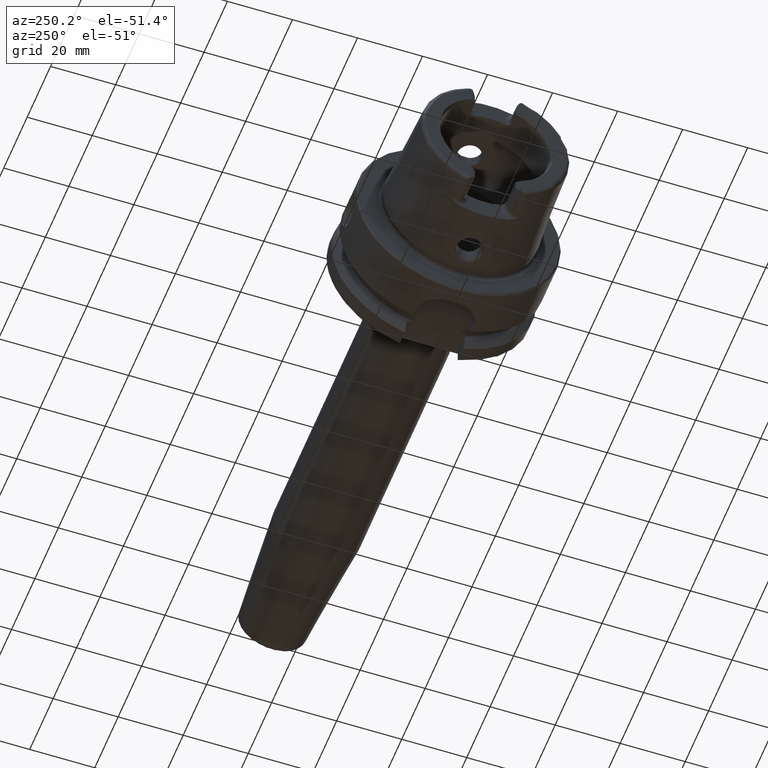
[diagram: clean part render]
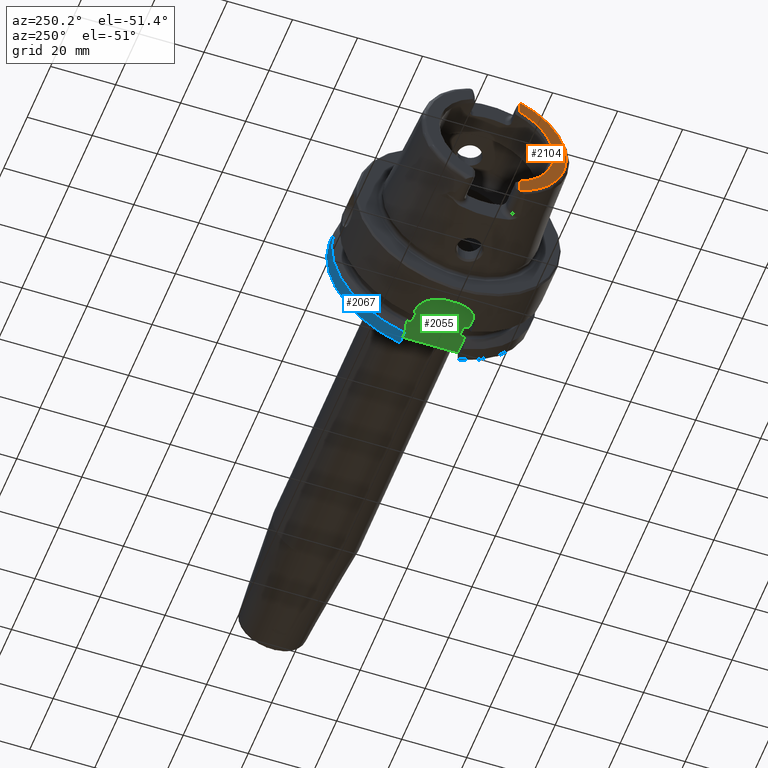
[diagram: same view with three faces highlighted in distinct colors, each labeled with its STEP entity id]
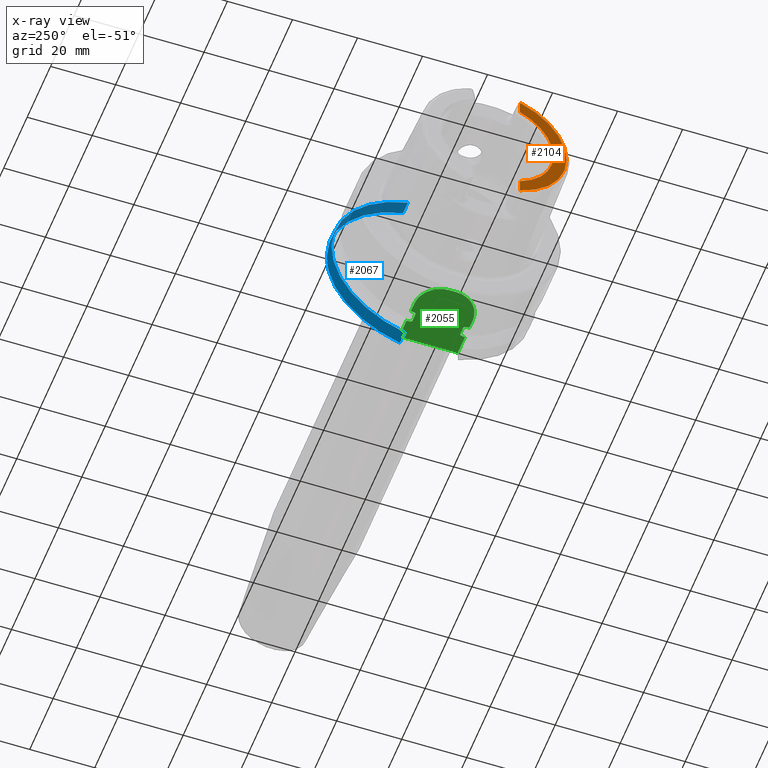
[diagram: x-ray of the same camera — body ghosted, the three highlighted faces saturated]
A machine part, auxiliary view with three faces highlighted in distinct colors.
The next image is the same camera in x-ray (body ghosted, the three faces saturated) — at least one of them is partly hidden behind the body in this view.
Their STEP definitions:

[orange] entity #2104 — the highlighted planar face has unit normal (-1, 0, 0).
#139=PLANE('',#2360);
#316=FACE_OUTER_BOUND('',#446,.T.);
#446=EDGE_LOOP('',(#1900,#1901,#1902,#1903,#1904,#1905));
#488=LINE('',#3133,#598);
#501=LINE('',#3246,#611);
#598=VECTOR('',#2518,10.);
#611=VECTOR('',#2565,10.);
#716=CIRCLE('',#2197,2.88);
#720=CIRCLE('',#2212,2.88);
#793=CIRCLE('',#2361,21.5760400159857);
#794=CIRCLE('',#2362,17.5773502691896);
#852=VERTEX_POINT('',#3130);
#853=VERTEX_POINT('',#3132);
#860=VERTEX_POINT('',#3165);
#873=VERTEX_POINT('',#3239);
#876=VERTEX_POINT('',#3244);
#879=VERTEX_POINT('',#3254);
#1072=EDGE_CURVE('',#852,#853,#488,.T.);
#1081=EDGE_CURVE('',#852,#860,#716,.T.);
#1100=EDGE_CURVE('',#876,#873,#501,.T.);
#1104=EDGE_CURVE('',#879,#873,#720,.T.);
#1313=EDGE_CURVE('',#879,#860,#793,.T.);
#1314=EDGE_CURVE('',#853,#876,#794,.T.);
#1900=ORIENTED_EDGE('',*,*,#1072,.F.);
#1901=ORIENTED_EDGE('',*,*,#1081,.T.);
#1902=ORIENTED_EDGE('',*,*,#1313,.F.);
#1903=ORIENTED_EDGE('',*,*,#1104,.T.);
#1904=ORIENTED_EDGE('',*,*,#1100,.F.);
#1905=ORIENTED_EDGE('',*,*,#1314,.F.);
#2104=ADVANCED_FACE('',(#316),#139,.T.);
#2197=AXIS2_PLACEMENT_3D('',#3178,#2530,#2531);
#2212=AXIS2_PLACEMENT_3D('',#3255,#2573,#2574);
#2360=AXIS2_PLACEMENT_3D('',#4436,#2935,#2936);
#2361=AXIS2_PLACEMENT_3D('',#4437,#2937,#2938);
#2362=AXIS2_PLACEMENT_3D('',#4438,#2939,#2940);
#2518=DIRECTION('',(0.,0.,1.));
#2530=DIRECTION('center_axis',(-1.,0.,0.));
#2531=DIRECTION('ref_axis',(0.,-1.,0.));
#2565=DIRECTION('',(0.,1.58830189502884E-16,1.));
#2573=DIRECTION('center_axis',(-1.,0.,0.));
#2574=DIRECTION('ref_axis',(0.,0.453346760926795,-0.891334232685576));
#2935=DIRECTION('center_axis',(-1.,0.,0.));
#2936=DIRECTION('ref_axis',(0.,0.,1.));
#2937=DIRECTION('center_axis',(1.,0.,0.));
#2938=DIRECTION('ref_axis',(0.,0.,-1.));
#2939=DIRECTION('center_axis',(-1.,0.,0.));
#2940=DIRECTION('ref_axis',(0.,-1.,0.));
#3130=CARTESIAN_POINT('',(-32.,-7.27,-20.1717424229271));
#3132=CARTESIAN_POINT('',(-32.,-7.27,-16.003447831195));
#3133=CARTESIAN_POINT('',(-32.,-7.27,-8.995));
#3165=CARTESIAN_POINT('',(-32.,-7.39118810947246,-20.2705658801576));
#3178=CARTESIAN_POINT('Origin',(-32.,-9.15,-17.99));
#3239=CARTESIAN_POINT('',(-32.,-7.26999999999999,20.1717424229271));
#3244=CARTESIAN_POINT('',(-32.,-7.26999999999999,16.003447831195));
#3246=CARTESIAN_POINT('',(-32.,-7.27,5.5));
#3254=CARTESIAN_POINT('',(-32.,-7.39118810947246,20.2705658801576));
#3255=CARTESIAN_POINT('Origin',(-32.,-9.15,17.99));
#4436=CARTESIAN_POINT('Origin',(-32.,21.5760400159857,0.));
#4437=CARTESIAN_POINT('Origin',(-32.,0.,0.));
#4438=CARTESIAN_POINT('Origin',(-32.,0.,0.));

[blue] entity #2067 — the highlighted cylindrical surface (partial cylindrical patch) has radius 31.5 mm, axis along (1, 0, 0).
#197=CYLINDRICAL_SURFACE('',#2293,31.5);
#279=FACE_OUTER_BOUND('',#408,.T.);
#408=EDGE_LOOP('',(#1699,#1700,#1701,#1702));
#537=LINE('',#4052,#647);
#551=LINE('',#4232,#661);
#647=VECTOR('',#2723,10.);
#661=VECTOR('',#2785,10.);
#761=CIRCLE('',#2290,31.5);
#763=CIRCLE('',#2294,31.5);
#953=VERTEX_POINT('',#4028);
#957=VERTEX_POINT('',#4048);
#982=VERTEX_POINT('',#4215);
#983=VERTEX_POINT('',#4230);
#1213=EDGE_CURVE('',#953,#957,#537,.T.);
#1249=EDGE_CURVE('',#953,#982,#761,.T.);
#1252=EDGE_CURVE('',#957,#983,#763,.T.);
#1253=EDGE_CURVE('',#983,#982,#551,.T.);
#1699=ORIENTED_EDGE('',*,*,#1213,.T.);
#1700=ORIENTED_EDGE('',*,*,#1252,.T.);
#1701=ORIENTED_EDGE('',*,*,#1253,.T.);
#1702=ORIENTED_EDGE('',*,*,#1249,.F.);
#2067=ADVANCED_FACE('',(#279),#197,.T.);
#2290=AXIS2_PLACEMENT_3D('',#4216,#2775,#2776);
#2293=AXIS2_PLACEMENT_3D('',#4229,#2781,#2782);
#2294=AXIS2_PLACEMENT_3D('',#4231,#2783,#2784);
#2723=DIRECTION('',(-1.,0.,0.));
#2775=DIRECTION('center_axis',(1.,0.,0.));
#2776=DIRECTION('ref_axis',(0.,0.,-1.));
#2781=DIRECTION('center_axis',(1.,0.,0.));
#2782=DIRECTION('ref_axis',(0.,1.,0.));
#2783=DIRECTION('center_axis',(1.,0.,0.));
#2784=DIRECTION('ref_axis',(0.,0.,-1.));
#2785=DIRECTION('',(1.,0.,0.));
#4028=CARTESIAN_POINT('',(25.5,9.,-30.1869176962472));
#4048=CARTESIAN_POINT('',(21.3774990747593,9.,-30.1869176962472));
#4052=CARTESIAN_POINT('',(23.4387495373797,9.,-30.1869176962472));
#4215=CARTESIAN_POINT('',(25.5,8.,30.4671954731642));
#4216=CARTESIAN_POINT('Origin',(25.5,0.,0.));
#4229=CARTESIAN_POINT('Origin',(23.4387495373797,0.,0.));
#4230=CARTESIAN_POINT('',(21.3774990747593,8.,30.4671954731642));
#4231=CARTESIAN_POINT('Origin',(21.3774990747593,0.,0.));
#4232=CARTESIAN_POINT('',(23.4387495373797,8.,30.4671954731642));

[green] entity #2055 — the highlighted planar face has unit normal (0, 0, 1).
#67=B_SPLINE_CURVE_WITH_KNOTS('',3,(#4056,#4057,#4058,#4059,#4060,#4061,
#4062,#4063,#4064,#4065),.UNSPECIFIED.,.F.,.F.,(4,2,2,2,4),(0.15835931245442,
0.289228035148658,0.316691561230897,0.323545183976989,0.328785692776271),
 .UNSPECIFIED.);
#68=B_SPLINE_CURVE_WITH_KNOTS('',3,(#4077,#4078,#4079,#4080,#4081,#4082,
#4083,#4084,#4085,#4086),.UNSPECIFIED.,.F.,.F.,(4,2,2,2,4),(0.328785692776271,
0.334026201575553,0.340879824321645,0.368343350403884,0.499212073098123),
 .UNSPECIFIED.);
#69=B_SPLINE_CURVE_WITH_KNOTS('',3,(#4089,#4090,#4091,#4092,#4093,#4094,
#4095,#4096,#4097,#4098),.UNSPECIFIED.,.F.,.F.,(4,2,2,2,4),(0.15835931245442,
0.289228035148658,0.316691561230897,0.323545183976988,0.32878569277627),
 .UNSPECIFIED.);
#70=B_SPLINE_CURVE_WITH_KNOTS('',3,(#4100,#4101,#4102,#4103,#4104,#4105,
#4106,#4107,#4108,#4109),.UNSPECIFIED.,.F.,.F.,(4,2,2,2,4),(0.32878569277627,
0.334026201575552,0.340879824321644,0.368343350403882,0.49921207309812),
 .UNSPECIFIED.);
#123=PLANE('',#2271);
#267=FACE_OUTER_BOUND('',#396,.T.);
#396=EDGE_LOOP('',(#1633,#1634,#1635,#1636,#1637,#1638,#1639,#1640,#1641,
#1642,#1643,#1644,#1645,#1646));
#478=LINE('',#3092,#588);
#533=LINE('',#4010,#643);
#535=LINE('',#4040,#645);
#538=LINE('',#4067,#648);
#539=LINE('',#4071,#649);
#540=LINE('',#4075,#650);
#541=LINE('',#4088,#651);
#542=LINE('',#4110,#652);
#588=VECTOR('',#2476,10.);
#643=VECTOR('',#2717,10.);
#645=VECTOR('',#2721,10.);
#648=VECTOR('',#2726,10.);
#649=VECTOR('',#2729,10.);
#650=VECTOR('',#2732,10.);
#651=VECTOR('',#2733,10.);
#652=VECTOR('',#2734,10.);
#753=CIRCLE('',#2272,8.);
#754=CIRCLE('',#2273,8.);
#837=VERTEX_POINT('',#3089);
#838=VERTEX_POINT('',#3091);
#950=VERTEX_POINT('',#4005);
#954=VERTEX_POINT('',#4039);
#958=VERTEX_POINT('',#4054);
#959=VERTEX_POINT('',#4055);
#960=VERTEX_POINT('',#4066);
#961=VERTEX_POINT('',#4068);
#962=VERTEX_POINT('',#4070);
#963=VERTEX_POINT('',#4072);
#964=VERTEX_POINT('',#4074);
#965=VERTEX_POINT('',#4076);
#966=VERTEX_POINT('',#4087);
#967=VERTEX_POINT('',#4099);
#1053=EDGE_CURVE('',#837,#838,#478,.T.);
#1204=EDGE_CURVE('',#950,#837,#533,.T.);
#1209=EDGE_CURVE('',#838,#954,#535,.T.);
#1214=EDGE_CURVE('',#958,#959,#67,.T.);
#1215=EDGE_CURVE('',#960,#958,#538,.T.);
#1216=EDGE_CURVE('',#961,#960,#753,.T.);
#1217=EDGE_CURVE('',#962,#961,#539,.T.);
#1218=EDGE_CURVE('',#963,#962,#754,.T.);
#1219=EDGE_CURVE('',#964,#963,#540,.T.);
#1220=EDGE_CURVE('',#965,#964,#68,.T.);
#1221=EDGE_CURVE('',#966,#965,#541,.T.);
#1222=EDGE_CURVE('',#954,#966,#69,.T.);
#1223=EDGE_CURVE('',#967,#950,#70,.T.);
#1224=EDGE_CURVE('',#959,#967,#542,.T.);
#1633=ORIENTED_EDGE('',*,*,#1214,.F.);
#1634=ORIENTED_EDGE('',*,*,#1215,.F.);
#1635=ORIENTED_EDGE('',*,*,#1216,.F.);
#1636=ORIENTED_EDGE('',*,*,#1217,.F.);
#1637=ORIENTED_EDGE('',*,*,#1218,.F.);
#1638=ORIENTED_EDGE('',*,*,#1219,.F.);
#1639=ORIENTED_EDGE('',*,*,#1220,.F.);
#1640=ORIENTED_EDGE('',*,*,#1221,.F.);
#1641=ORIENTED_EDGE('',*,*,#1222,.F.);
#1642=ORIENTED_EDGE('',*,*,#1209,.F.);
#1643=ORIENTED_EDGE('',*,*,#1053,.F.);
#1644=ORIENTED_EDGE('',*,*,#1204,.F.);
#1645=ORIENTED_EDGE('',*,*,#1223,.F.);
#1646=ORIENTED_EDGE('',*,*,#1224,.F.);
#2055=ADVANCED_FACE('',(#267),#123,.F.);
#2271=AXIS2_PLACEMENT_3D('',#4053,#2724,#2725);
#2272=AXIS2_PLACEMENT_3D('',#4069,#2727,#2728);
#2273=AXIS2_PLACEMENT_3D('',#4073,#2730,#2731);
#2476=DIRECTION('',(0.,1.,0.));
#2717=DIRECTION('',(1.,-2.56205313375036E-16,0.));
#2721=DIRECTION('',(-1.,2.56205313375036E-16,0.));
#2724=DIRECTION('center_axis',(0.,0.,1.));
#2725=DIRECTION('ref_axis',(1.,0.,0.));
#2726=DIRECTION('',(1.,-2.56205313375036E-16,0.));
#2727=DIRECTION('center_axis',(0.,0.,1.));
#2728=DIRECTION('ref_axis',(-1.,-2.42861286636753E-16,0.));
#2729=DIRECTION('',(0.,-1.,0.));
#2730=DIRECTION('center_axis',(0.,0.,1.));
#2731=DIRECTION('ref_axis',(0.,1.,0.));
#2732=DIRECTION('',(-1.,2.56205313375036E-16,0.));
#2733=DIRECTION('',(-1.,0.,0.));
#2734=DIRECTION('',(1.,0.,0.));
#3089=CARTESIAN_POINT('',(26.,-9.,-26.5));
#3091=CARTESIAN_POINT('',(26.,9.,-26.5));
#3092=CARTESIAN_POINT('',(26.,1.94289029309402E-15,-26.5));
#4005=CARTESIAN_POINT('',(19.8748205133158,-9.,-26.5));
#4010=CARTESIAN_POINT('',(13.,-9.,-26.5));
#4039=CARTESIAN_POINT('',(19.8748205133158,9.,-26.5));
#4040=CARTESIAN_POINT('',(26.,9.,-26.5));
#4053=CARTESIAN_POINT('Origin',(15.5,3.88578058618805E-15,-26.5));
#4054=CARTESIAN_POINT('',(16.1251794866842,-9.,-26.5));
#4055=CARTESIAN_POINT('',(16.625,-7.34846922834952,-26.5));
#4056=CARTESIAN_POINT('Ctrl Pts',(16.1251794866842,-9.,-26.5));
#4057=CARTESIAN_POINT('Ctrl Pts',(16.12898241235,-8.55877260788573,-26.5));
#4058=CARTESIAN_POINT('Ctrl Pts',(16.1819334034884,-8.04136347440828,-26.5));
#4059=CARTESIAN_POINT('Ctrl Pts',(16.3906456489289,-7.5566112023157,-26.5));
#4060=CARTESIAN_POINT('Ctrl Pts',(16.4411490019356,-7.4590543697872,-26.5));
#4061=CARTESIAN_POINT('Ctrl Pts',(16.5270295504762,-7.38349170057081,-26.5));
#4062=CARTESIAN_POINT('Ctrl Pts',(16.5496994821687,-7.36807649661538,-26.5));
#4063=CARTESIAN_POINT('Ctrl Pts',(16.587038394856,-7.35287762173868,-26.5));
#4064=CARTESIAN_POINT('Ctrl Pts',(16.6075316373357,-7.34846922834952,-26.5));
#4065=CARTESIAN_POINT('Ctrl Pts',(16.625,-7.34846922834952,-26.5));
#4066=CARTESIAN_POINT('',(13.,-9.,-26.5));
#4067=CARTESIAN_POINT('',(13.,-9.,-26.5));
#4068=CARTESIAN_POINT('',(5.,-0.999999999999999,-26.5));
#4069=CARTESIAN_POINT('Origin',(13.,-0.999999999999997,-26.5));
#4070=CARTESIAN_POINT('',(5.,1.,-26.5));
#4071=CARTESIAN_POINT('',(5.,1.,-26.5));
#4072=CARTESIAN_POINT('',(13.,9.00000000000001,-26.5));
#4073=CARTESIAN_POINT('Origin',(13.,1.,-26.5));
#4074=CARTESIAN_POINT('',(16.1251794866842,9.,-26.5));
#4075=CARTESIAN_POINT('',(26.,9.,-26.5));
#4076=CARTESIAN_POINT('',(16.625,7.34846922834952,-26.5));
#4077=CARTESIAN_POINT('Ctrl Pts',(16.625,7.34846922834952,-26.5));
#4078=CARTESIAN_POINT('Ctrl Pts',(16.6075316373357,7.34846922834952,-26.5));
#4079=CARTESIAN_POINT('Ctrl Pts',(16.587038394856,7.35287762173868,-26.5));
#4080=CARTESIAN_POINT('Ctrl Pts',(16.5496994821687,7.36807649661538,-26.5));
#4081=CARTESIAN_POINT('Ctrl Pts',(16.5270295504762,7.38349170057081,-26.5));
#4082=CARTESIAN_POINT('Ctrl Pts',(16.4411490019356,7.4590543697872,-26.5));
#4083=CARTESIAN_POINT('Ctrl Pts',(16.3906456489289,7.5566112023157,-26.5));
#4084=CARTESIAN_POINT('Ctrl Pts',(16.1819334034884,8.04136347440828,-26.5));
#4085=CARTESIAN_POINT('Ctrl Pts',(16.12898241235,8.55877260788573,-26.5));
#4086=CARTESIAN_POINT('Ctrl Pts',(16.1251794866842,9.,-26.5));
#4087=CARTESIAN_POINT('',(19.375,7.34846922834952,-26.5));
#4088=CARTESIAN_POINT('',(18.,7.34846922834952,-26.5));
#4089=CARTESIAN_POINT('Ctrl Pts',(19.8748205133158,9.,-26.5));
#4090=CARTESIAN_POINT('Ctrl Pts',(19.87101758765,8.55877260788573,-26.5));
#4091=CARTESIAN_POINT('Ctrl Pts',(19.8180665965116,8.04136347440828,-26.5));
#4092=CARTESIAN_POINT('Ctrl Pts',(19.6093543510711,7.5566112023157,-26.5));
#4093=CARTESIAN_POINT('Ctrl Pts',(19.5588509980644,7.45905436978719,-26.5));
#4094=CARTESIAN_POINT('Ctrl Pts',(19.4729704495238,7.38349170057082,-26.5));
#4095=CARTESIAN_POINT('Ctrl Pts',(19.4503005178313,7.3680764966154,-26.5));
#4096=CARTESIAN_POINT('Ctrl Pts',(19.412961605144,7.35287762173869,-26.5));
#4097=CARTESIAN_POINT('Ctrl Pts',(19.3924683626643,7.34846922834952,-26.5));
#4098=CARTESIAN_POINT('Ctrl Pts',(19.375,7.34846922834952,-26.5));
#4099=CARTESIAN_POINT('',(19.375,-7.34846922834952,-26.5));
#4100=CARTESIAN_POINT('Ctrl Pts',(19.375,-7.34846922834952,-26.5));
#4101=CARTESIAN_POINT('Ctrl Pts',(19.3924683626643,-7.34846922834952,-26.5));
#4102=CARTESIAN_POINT('Ctrl Pts',(19.412961605144,-7.35287762173869,-26.5));
#4103=CARTESIAN_POINT('Ctrl Pts',(19.4503005178313,-7.3680764966154,-26.5));
#4104=CARTESIAN_POINT('Ctrl Pts',(19.4729704495238,-7.38349170057082,-26.5));
#4105=CARTESIAN_POINT('Ctrl Pts',(19.5588509980644,-7.45905436978719,-26.5));
#4106=CARTESIAN_POINT('Ctrl Pts',(19.6093543510711,-7.5566112023157,-26.5));
#4107=CARTESIAN_POINT('Ctrl Pts',(19.8180665965116,-8.04136347440828,-26.5));
#4108=CARTESIAN_POINT('Ctrl Pts',(19.87101758765,-8.55877260788573,-26.5));
#4109=CARTESIAN_POINT('Ctrl Pts',(19.8748205133158,-9.,-26.5));
#4110=CARTESIAN_POINT('',(18.,-7.34846922834952,-26.5));